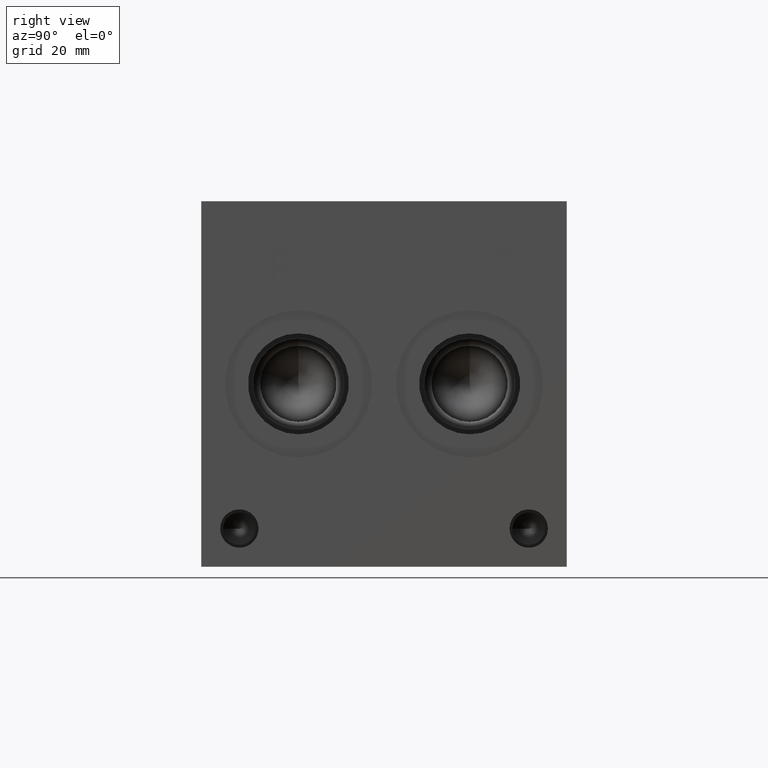
[diagram: clean part render]
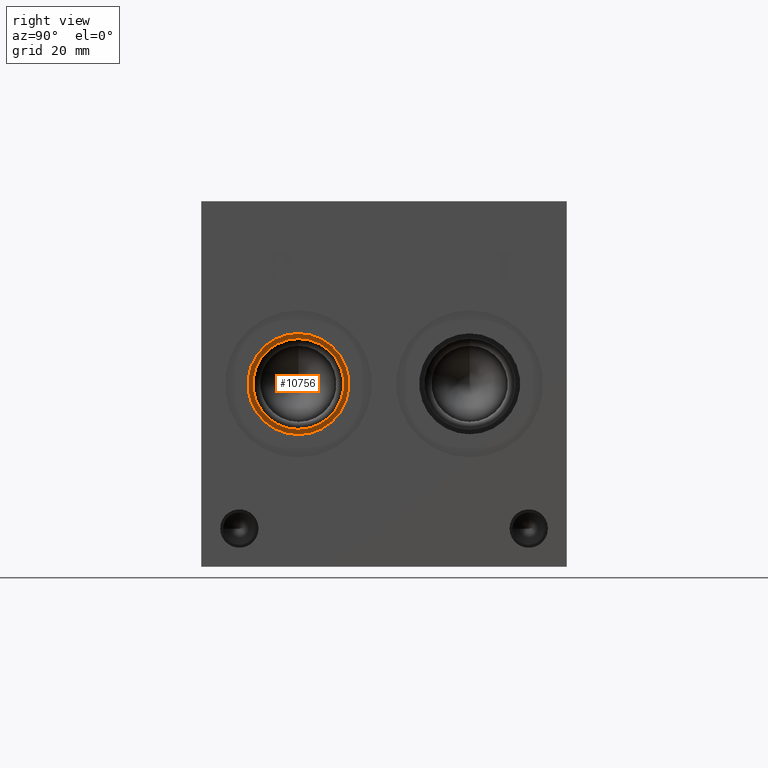
[diagram: same view with one face highlighted and labeled with its STEP entity id]
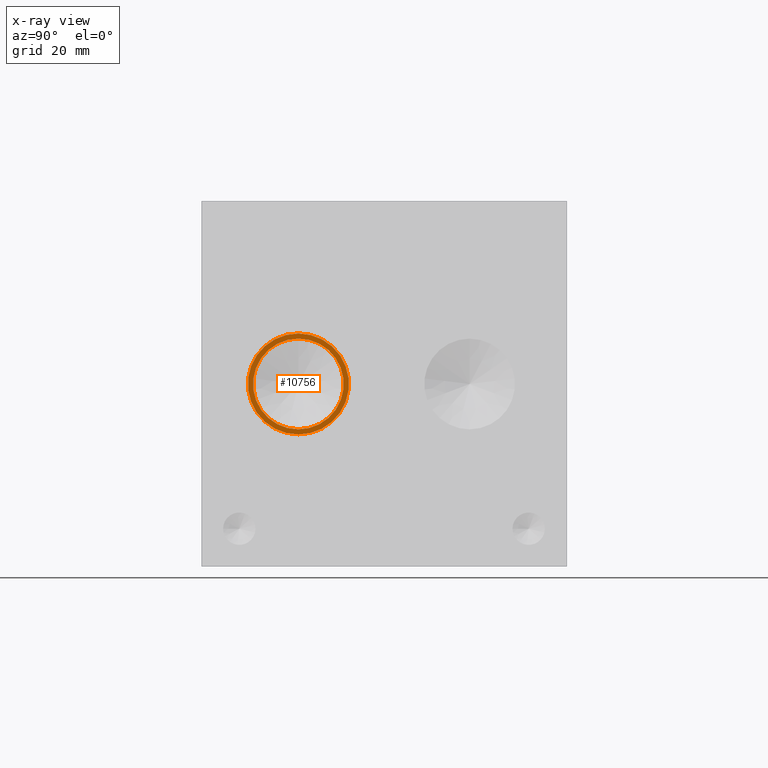
[diagram: x-ray of the same camera — body ghosted, the highlighted face saturated]
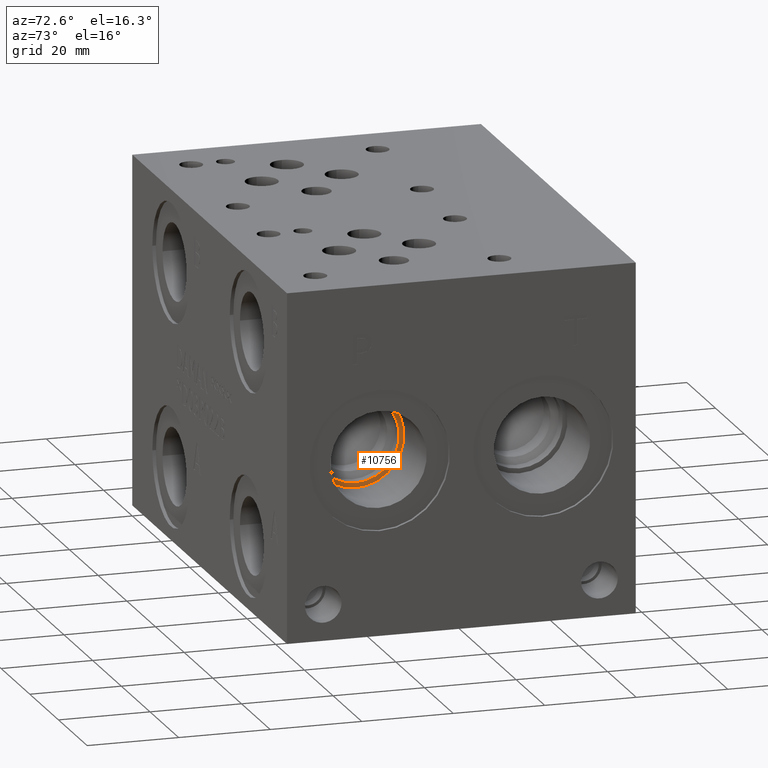
[diagram: same view with one face highlighted and labeled with its STEP entity id]
A machine part, right view. The second image highlights one B-rep face of the part: STEP entity #10756.
The next image is the same camera in x-ray: the body ghosted, the highlighted face saturated — about 0% of this face is hidden behind the body in this view.
A second angle (auxiliary view) of the same face is appended — the face is thin or edge-on in the first view.
In plain terms, the highlighted planar face has unit normal (-1, 0, 0).
Its self-contained STEP definition (entity closure, byte-faithful):
#139=CIRCLE('',#11234,10.5283);
#140=CIRCLE('',#11236,9.4615);
#308=FACE_BOUND('',#1898,.T.);
#1252=FACE_OUTER_BOUND('',#1897,.T.);
#1897=EDGE_LOOP('',(#9071));
#1898=EDGE_LOOP('',(#9072));
#4989=VERTEX_POINT('',#18128);
#4990=VERTEX_POINT('',#18132);
#6386=EDGE_CURVE('',#4989,#4989,#139,.T.);
#6387=EDGE_CURVE('',#4990,#4990,#140,.T.);
#9071=ORIENTED_EDGE('',*,*,#6386,.F.);
#9072=ORIENTED_EDGE('',*,*,#6387,.T.);
#9832=PLANE('',#11235);
#10756=ADVANCED_FACE('',(#1252,#308),#9832,.F.);
#11234=AXIS2_PLACEMENT_3D('',#18130,#13084,#13085);
#11235=AXIS2_PLACEMENT_3D('',#18131,#13086,#13087);
#11236=AXIS2_PLACEMENT_3D('',#18133,#13088,#13089);
#13084=DIRECTION('center_axis',(-1.,0.,0.));
#13085=DIRECTION('ref_axis',(0.,0.,1.));
#13086=DIRECTION('center_axis',(-1.,0.,0.));
#13087=DIRECTION('ref_axis',(0.,0.,1.));
#13088=DIRECTION('center_axis',(-1.,0.,0.));
#13089=DIRECTION('ref_axis',(0.,0.,1.));
#18128=CARTESIAN_POINT('',(91.3638,20.2438,48.6283));
#18130=CARTESIAN_POINT('Origin',(91.3638,20.2438,38.1));
#18131=CARTESIAN_POINT('Origin',(91.3638,20.2438,28.6385));
#18132=CARTESIAN_POINT('',(91.3638,20.2438,47.5615));
#18133=CARTESIAN_POINT('Origin',(91.3638,20.2438,38.1));